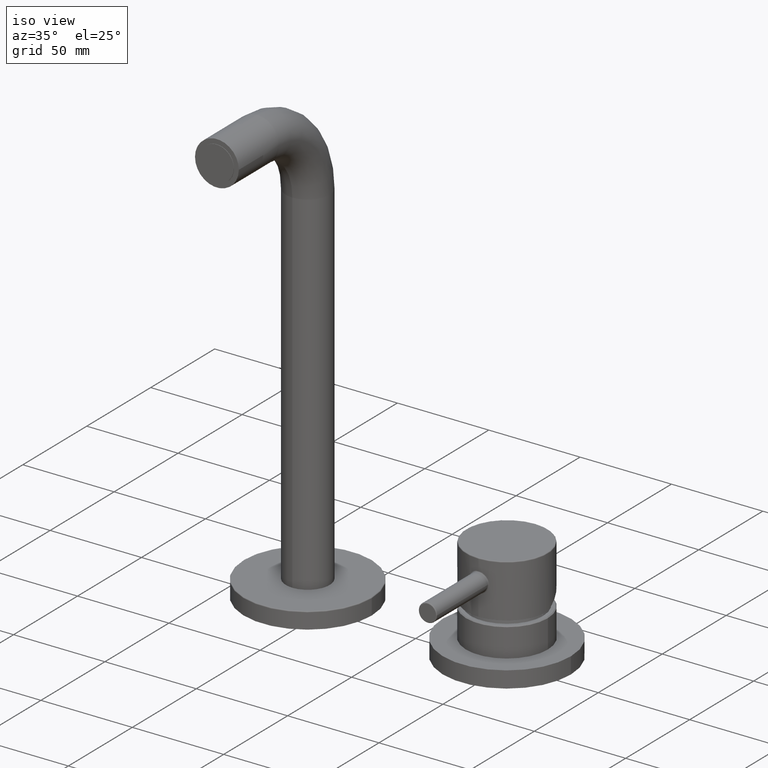
[diagram: clean part render]
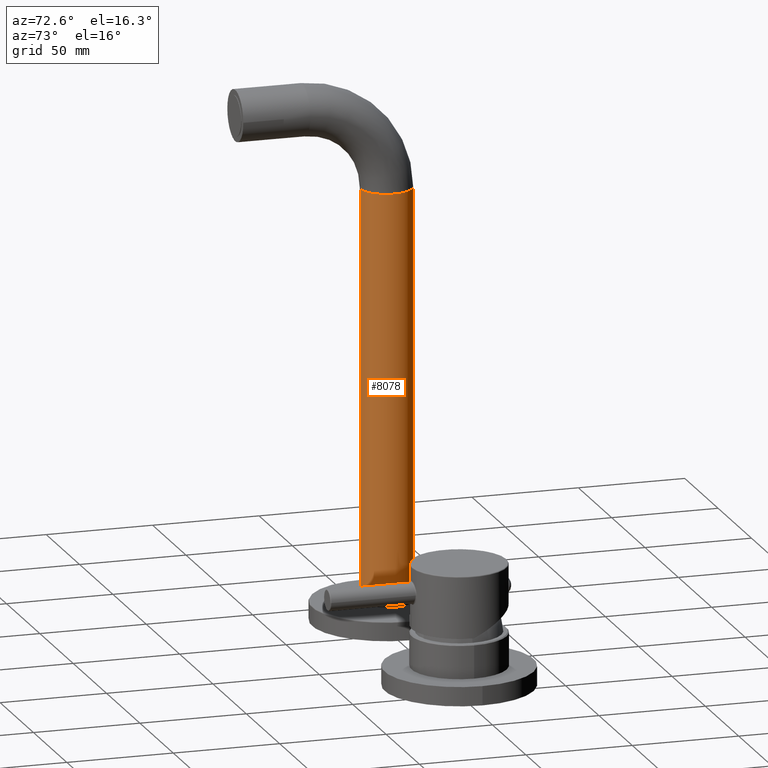
[diagram: tour spotlight — one face highlighted and labeled with its STEP entity id]
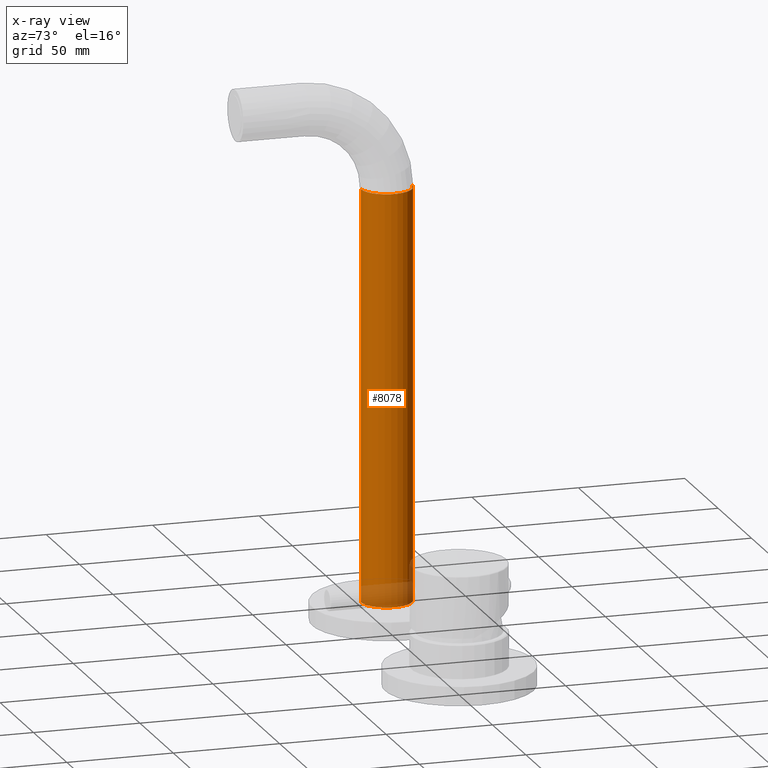
[diagram: x-ray of the same camera — body ghosted, this tour face saturated]
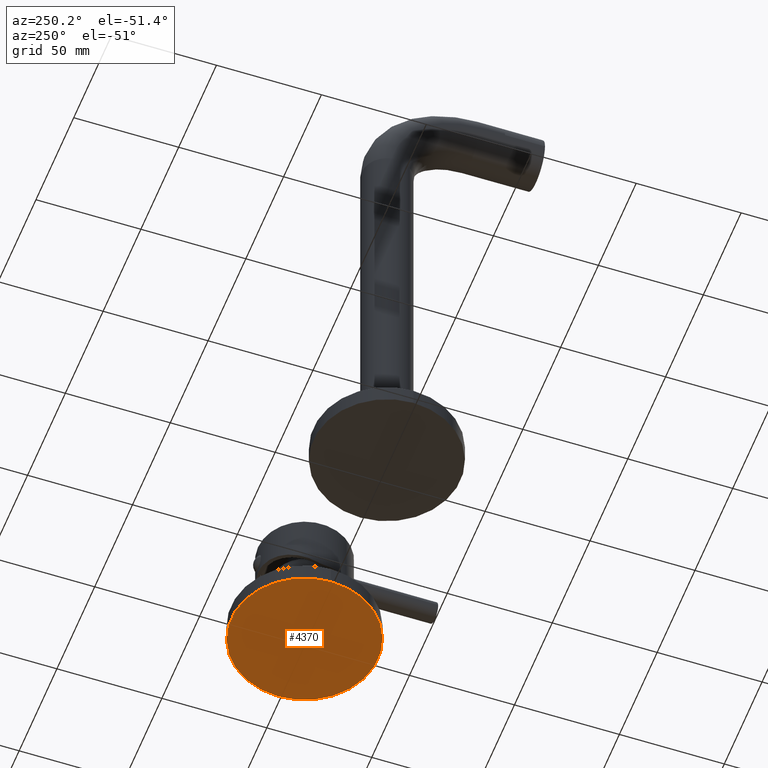
[diagram: tour spotlight — one face highlighted and labeled with its STEP entity id]
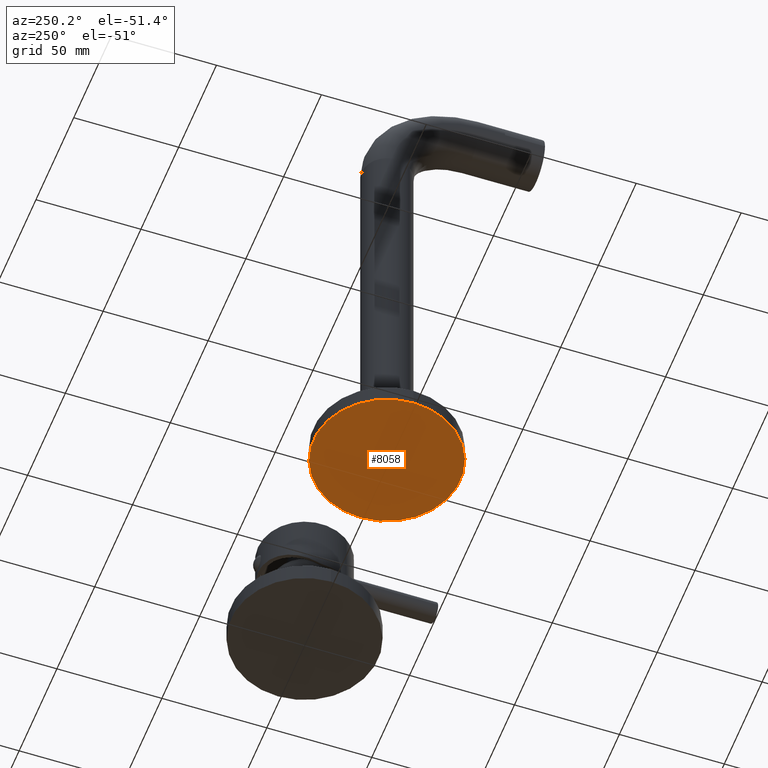
[diagram: tour spotlight — one face highlighted and labeled with its STEP entity id]
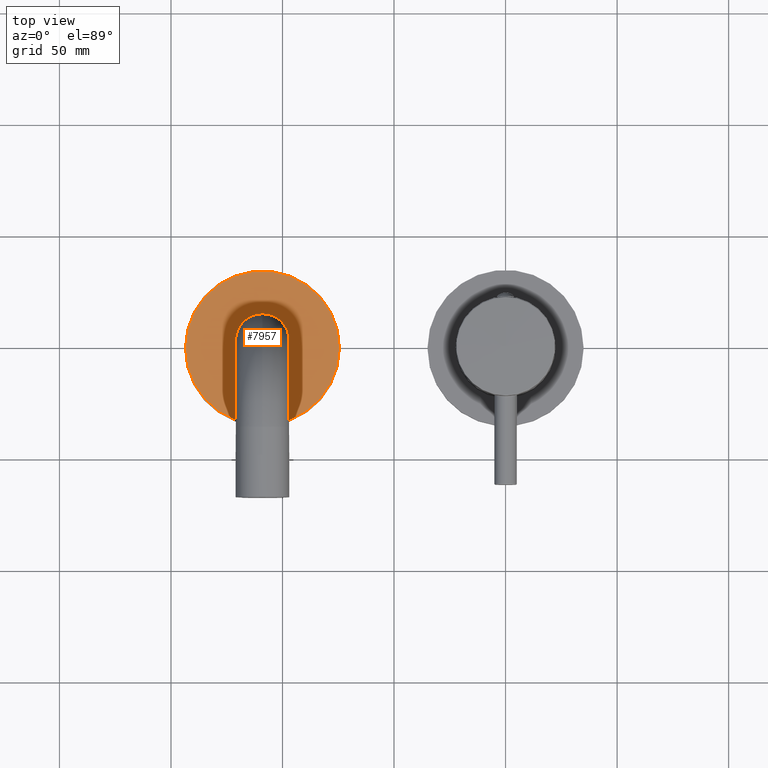
[diagram: tour spotlight — one face highlighted and labeled with its STEP entity id]
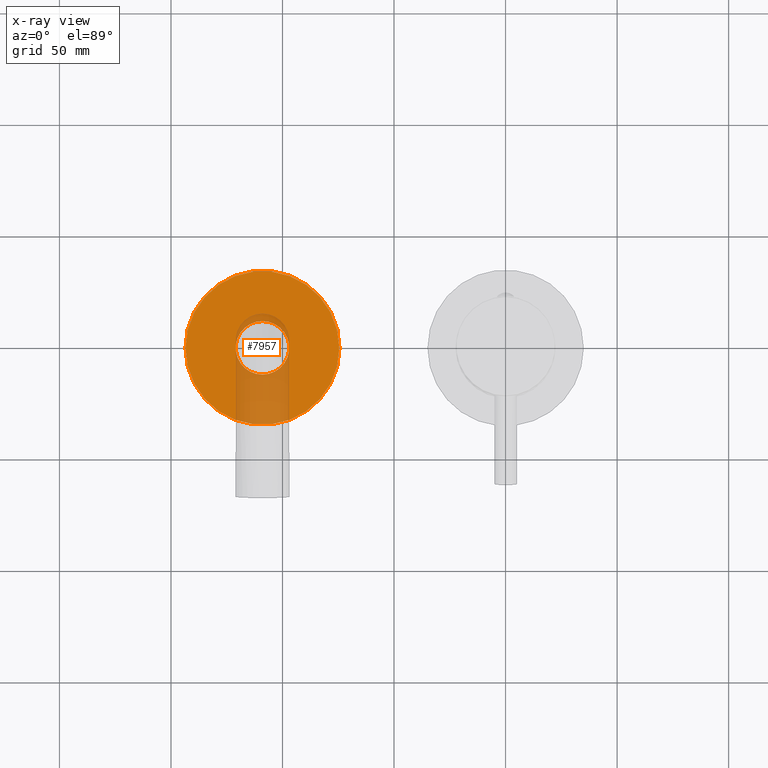
[diagram: x-ray of the same camera — body ghosted, this tour face saturated]
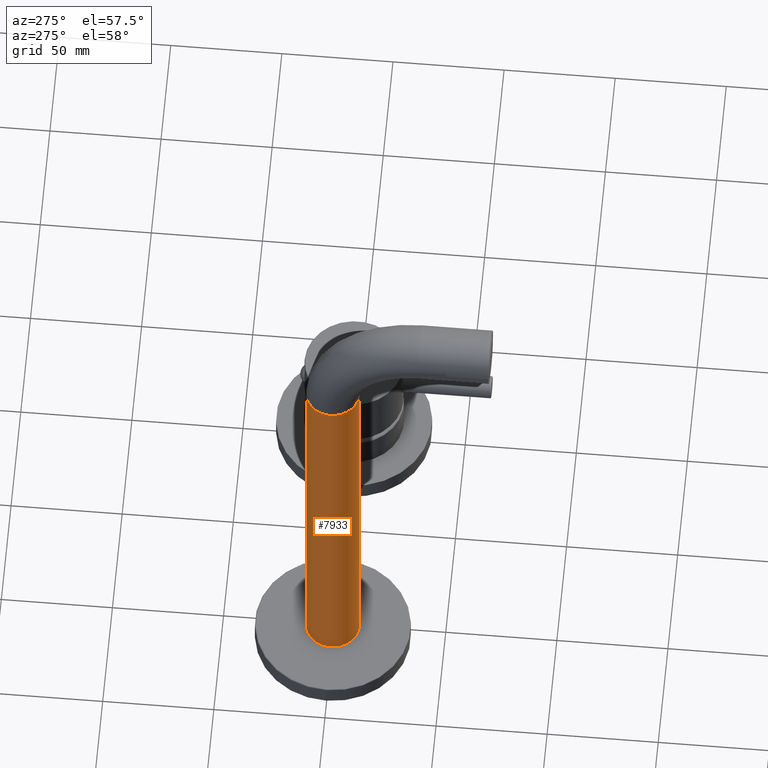
[diagram: tour spotlight — one face highlighted and labeled with its STEP entity id]
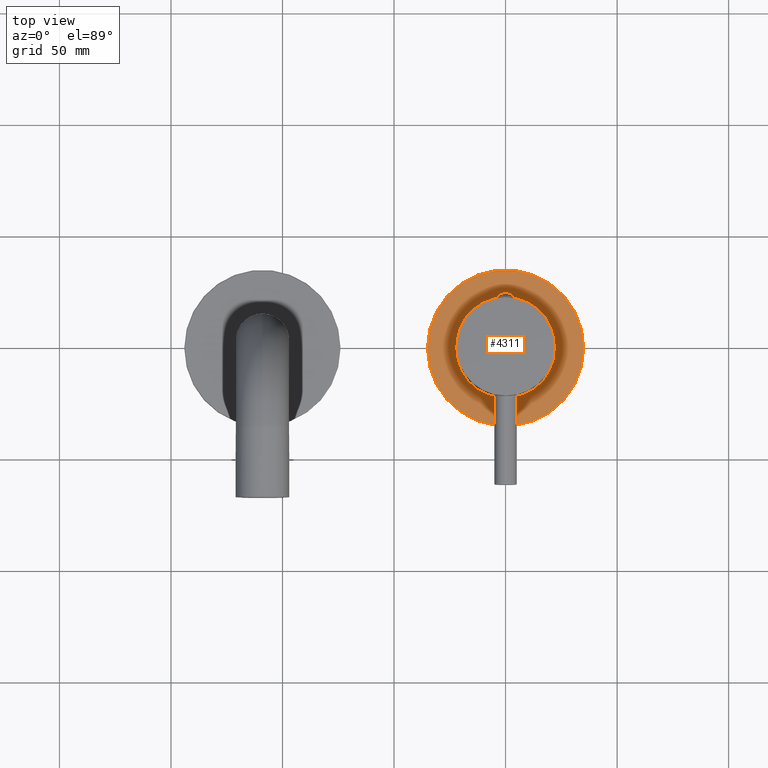
[diagram: tour spotlight — one face highlighted and labeled with its STEP entity id]
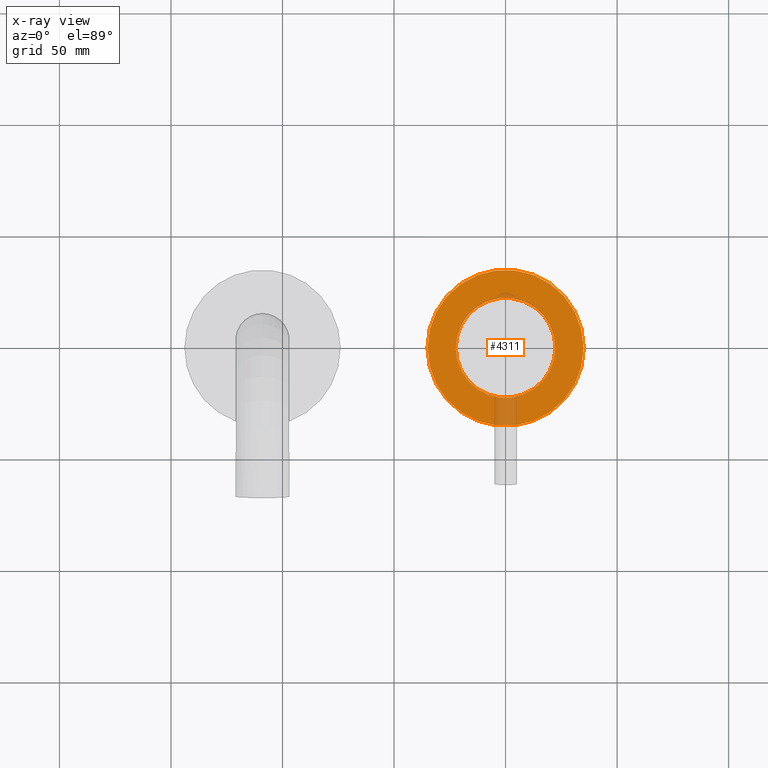
[diagram: x-ray of the same camera — body ghosted, this tour face saturated]
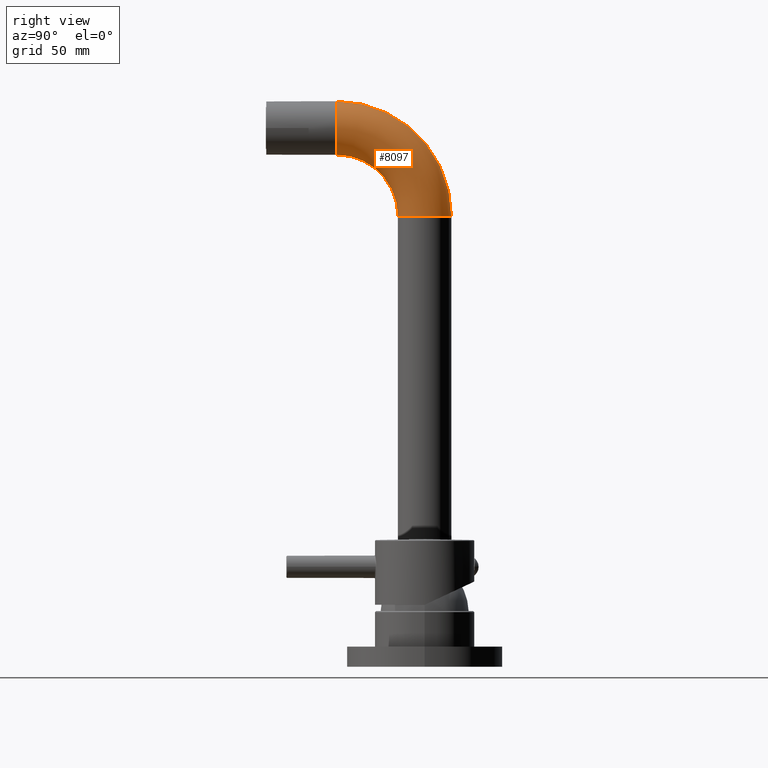
[diagram: tour spotlight — one face highlighted and labeled with its STEP entity id]
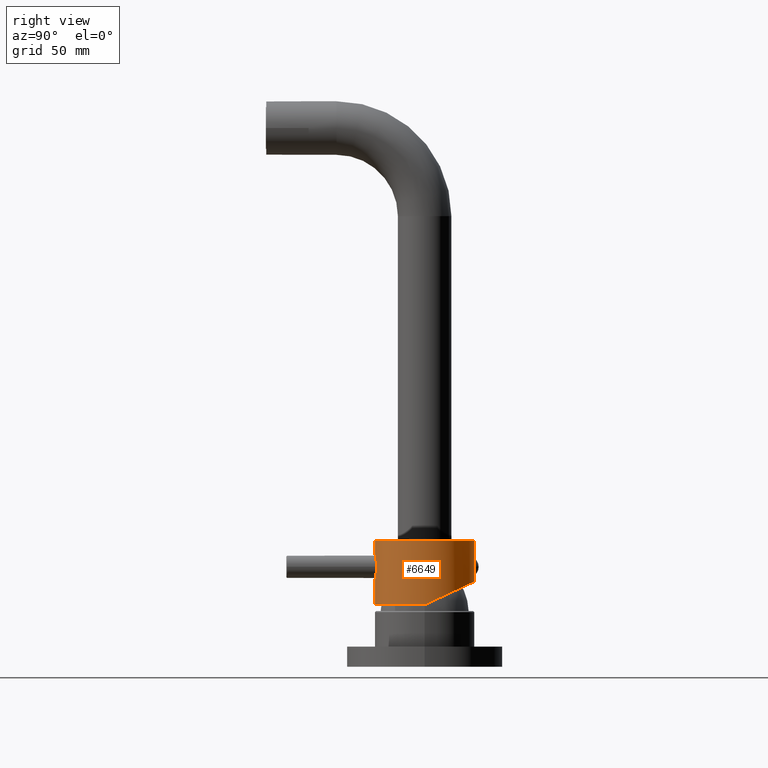
[diagram: tour spotlight — one face highlighted and labeled with its STEP entity id]
A machine part: a face-by-face anatomy tour. The part has 173 B-rep faces; the first image is the clean iso view, then the 8 largest visible faces are spotlighted one at a time (largest first), each with its STEP entity span.

Face 1 — auxiliary view, entity #8078. An x-ray twin of the same camera follows (body ghosted, this face saturated) — the face is partly hidden behind the body. In plain terms, the highlighted cylindrical surface (edge-blend (fillet) strip) has radius 12 mm, axis along (0, 0, 1).
Definition (entity closure, byte-faithful):
#7671=DIRECTION('',(0.E0,0.E0,1.E0));
#7672=VECTOR('',#7671,1.93E2);
#7673=CARTESIAN_POINT('',(-1.09E2,1.2E1,5.05E1));
#7674=LINE('',#7673,#7672);
#7723=CARTESIAN_POINT('',(-1.09E2,0.E0,5.05E1));
#7724=DIRECTION('',(0.E0,0.E0,1.E0));
#7725=DIRECTION('',(0.E0,-1.E0,0.E0));
#7726=AXIS2_PLACEMENT_3D('',#7723,#7724,#7725);
#7728=DIRECTION('',(0.E0,0.E0,1.E0));
#7729=VECTOR('',#7728,1.93E2);
#7730=CARTESIAN_POINT('',(-1.09E2,-1.2E1,5.05E1));
#7731=LINE('',#7730,#7729);
#7732=CARTESIAN_POINT('',(-1.09E2,2.842170943040E-14,2.435E2));
#7733=DIRECTION('',(0.E0,0.E0,1.E0));
#7734=DIRECTION('',(0.E0,-1.E0,0.E0));
#7735=AXIS2_PLACEMENT_3D('',#7732,#7733,#7734);
#7752=CARTESIAN_POINT('',(-1.09E2,-1.2E1,2.435E2));
#7753=CARTESIAN_POINT('',(-1.09E2,1.2E1,2.435E2));
#7754=VERTEX_POINT('',#7752);
#7755=VERTEX_POINT('',#7753);
#7792=CARTESIAN_POINT('',(-1.09E2,-1.2E1,5.05E1));
#7793=CARTESIAN_POINT('',(-1.09E2,1.2E1,5.05E1));
#7794=VERTEX_POINT('',#7792);
#7795=VERTEX_POINT('',#7793);
#8066=CARTESIAN_POINT('',(-1.09E2,0.E0,3.8E1));
#8067=DIRECTION('',(0.E0,0.E0,1.E0));
#8068=DIRECTION('',(0.E0,-1.E0,0.E0));
#8069=AXIS2_PLACEMENT_3D('',#8066,#8067,#8068);
#8070=CYLINDRICAL_SURFACE('',#8069,1.2E1);
#8071=ORIENTED_EDGE('',*,*,#7952,.F.);
#8072=ORIENTED_EDGE('',*,*,#7929,.T.);
#8074=ORIENTED_EDGE('',*,*,#8073,.T.);
#8075=ORIENTED_EDGE('',*,*,#7926,.F.);
#8076=EDGE_LOOP('',(#8071,#8072,#8074,#8075));
#8077=FACE_OUTER_BOUND('',#8076,.F.);
#8078=ADVANCED_FACE('',(#8077),#8070,.T.);
#7727=CIRCLE('',#7726,1.2E1);
#7736=CIRCLE('',#7735,1.2E1);
#7926=EDGE_CURVE('',#7795,#7755,#7674,.T.);
#7929=EDGE_CURVE('',#7794,#7754,#7731,.T.);
#7952=EDGE_CURVE('',#7794,#7795,#7727,.T.);
#8073=EDGE_CURVE('',#7754,#7755,#7736,.T.);

Face 2 — auxiliary view, entity #4370. In plain terms, the highlighted planar face has unit normal (0, 0, -1).
Definition (entity closure, byte-faithful):
#990=CARTESIAN_POINT('',(0.E0,0.E0,4.15E1));
#991=DIRECTION('',(0.E0,0.E0,1.E0));
#992=DIRECTION('',(-1.E0,0.E0,0.E0));
#993=AXIS2_PLACEMENT_3D('',#990,#991,#992);
#995=CARTESIAN_POINT('',(0.E0,0.E0,4.15E1));
#996=DIRECTION('',(0.E0,0.E0,-1.E0));
#997=DIRECTION('',(-1.E0,0.E0,0.E0));
#998=AXIS2_PLACEMENT_3D('',#995,#996,#997);
#3204=CARTESIAN_POINT('',(-3.5E1,0.E0,4.15E1));
#3206=VERTEX_POINT('',#3204);
#3208=CARTESIAN_POINT('',(3.5E1,0.E0,4.15E1));
#3210=VERTEX_POINT('',#3208);
#4361=CARTESIAN_POINT('',(-1.09E2,0.E0,4.15E1));
#4362=DIRECTION('',(0.E0,0.E0,-1.E0));
#4363=DIRECTION('',(-1.E0,0.E0,0.E0));
#4364=AXIS2_PLACEMENT_3D('',#4361,#4362,#4363);
#4365=PLANE('',#4364);
#4366=ORIENTED_EDGE('',*,*,#4347,.F.);
#4367=ORIENTED_EDGE('',*,*,#4329,.T.);
#4368=EDGE_LOOP('',(#4366,#4367));
#4369=FACE_OUTER_BOUND('',#4368,.F.);
#4370=ADVANCED_FACE('',(#4369),#4365,.T.);
#994=CIRCLE('',#993,3.5E1);
#999=CIRCLE('',#998,3.5E1);
#4329=EDGE_CURVE('',#3206,#3210,#994,.T.);
#4347=EDGE_CURVE('',#3206,#3210,#999,.T.);

Face 3 — auxiliary view, entity #8058. In plain terms, the highlighted planar face has unit normal (0, 0, -1).
Definition (entity closure, byte-faithful):
#7700=CARTESIAN_POINT('',(-1.09E2,0.E0,4.15E1));
#7701=DIRECTION('',(0.E0,0.E0,-1.E0));
#7702=DIRECTION('',(-1.E0,0.E0,0.E0));
#7703=AXIS2_PLACEMENT_3D('',#7700,#7701,#7702);
#7714=CARTESIAN_POINT('',(-1.09E2,0.E0,4.15E1));
#7715=DIRECTION('',(0.E0,0.E0,1.E0));
#7716=DIRECTION('',(-1.E0,0.E0,0.E0));
#7717=AXIS2_PLACEMENT_3D('',#7714,#7715,#7716);
#7776=CARTESIAN_POINT('',(-1.44E2,0.E0,4.15E1));
#7777=CARTESIAN_POINT('',(-7.4E1,0.E0,4.15E1));
#7778=VERTEX_POINT('',#7776);
#7779=VERTEX_POINT('',#7777);
#8049=CARTESIAN_POINT('',(-1.09E2,0.E0,4.15E1));
#8050=DIRECTION('',(0.E0,0.E0,-1.E0));
#8051=DIRECTION('',(-1.E0,0.E0,0.E0));
#8052=AXIS2_PLACEMENT_3D('',#8049,#8050,#8051);
#8053=PLANE('',#8052);
#8054=ORIENTED_EDGE('',*,*,#8015,.F.);
#8055=ORIENTED_EDGE('',*,*,#8036,.T.);
#8056=EDGE_LOOP('',(#8054,#8055));
#8057=FACE_OUTER_BOUND('',#8056,.F.);
#8058=ADVANCED_FACE('',(#8057),#8053,.T.);
#7704=CIRCLE('',#7703,3.5E1);
#7718=CIRCLE('',#7717,3.5E1);
#8015=EDGE_CURVE('',#7778,#7779,#7704,.T.);
#8036=EDGE_CURVE('',#7778,#7779,#7718,.T.);

Face 4 — top view, entity #7957. An x-ray twin of the same camera follows (body ghosted, this face saturated) — the face is partly hidden behind the body. In plain terms, the highlighted planar face has unit normal (0, 0, -1).
Definition (entity closure, byte-faithful):
#7666=CARTESIAN_POINT('',(-1.09E2,0.E0,5.05E1));
#7667=DIRECTION('',(0.E0,0.E0,1.E0));
#7668=DIRECTION('',(0.E0,1.E0,0.E0));
#7669=AXIS2_PLACEMENT_3D('',#7666,#7667,#7668);
#7675=CARTESIAN_POINT('',(-1.09E2,0.E0,5.05E1));
#7676=DIRECTION('',(0.E0,0.E0,1.E0));
#7677=DIRECTION('',(-1.E0,0.E0,0.E0));
#7678=AXIS2_PLACEMENT_3D('',#7675,#7676,#7677);
#7680=CARTESIAN_POINT('',(-1.09E2,0.E0,5.05E1));
#7681=DIRECTION('',(0.E0,0.E0,1.E0));
#7682=DIRECTION('',(1.E0,0.E0,0.E0));
#7683=AXIS2_PLACEMENT_3D('',#7680,#7681,#7682);
#7723=CARTESIAN_POINT('',(-1.09E2,0.E0,5.05E1));
#7724=DIRECTION('',(0.E0,0.E0,1.E0));
#7725=DIRECTION('',(0.E0,-1.E0,0.E0));
#7726=AXIS2_PLACEMENT_3D('',#7723,#7724,#7725);
#7780=CARTESIAN_POINT('',(-1.435E2,1.997474557659E-14,5.05E1));
#7781=CARTESIAN_POINT('',(-7.45E1,-2.334250427424E-14,5.05E1));
#7782=VERTEX_POINT('',#7780);
#7783=VERTEX_POINT('',#7781);
#7792=CARTESIAN_POINT('',(-1.09E2,-1.2E1,5.05E1));
#7793=CARTESIAN_POINT('',(-1.09E2,1.2E1,5.05E1));
#7794=VERTEX_POINT('',#7792);
#7795=VERTEX_POINT('',#7793);
#7941=CARTESIAN_POINT('',(-1.09E2,0.E0,5.05E1));
#7942=DIRECTION('',(0.E0,0.E0,-1.E0));
#7943=DIRECTION('',(1.E0,0.E0,0.E0));
#7944=AXIS2_PLACEMENT_3D('',#7941,#7942,#7943);
#7945=PLANE('',#7944);
#7947=ORIENTED_EDGE('',*,*,#7946,.F.);
#7949=ORIENTED_EDGE('',*,*,#7948,.F.);
#7950=EDGE_LOOP('',(#7947,#7949));
#7951=FACE_OUTER_BOUND('',#7950,.F.);
#7953=ORIENTED_EDGE('',*,*,#7952,.T.);
#7954=ORIENTED_EDGE('',*,*,#7924,.T.);
#7955=EDGE_LOOP('',(#7953,#7954));
#7956=FACE_BOUND('',#7955,.F.);
#7957=ADVANCED_FACE('',(#7951,#7956),#7945,.F.);
#7670=CIRCLE('',#7669,1.2E1);
#7679=CIRCLE('',#7678,3.45E1);
#7684=CIRCLE('',#7683,3.45E1);
#7727=CIRCLE('',#7726,1.2E1);
#7924=EDGE_CURVE('',#7795,#7794,#7670,.T.);
#7946=EDGE_CURVE('',#7782,#7783,#7679,.T.);
#7948=EDGE_CURVE('',#7783,#7782,#7684,.T.);
#7952=EDGE_CURVE('',#7794,#7795,#7727,.T.);

Face 5 — auxiliary view, entity #7933. In plain terms, the highlighted cylindrical surface (edge-blend (fillet) strip) has radius 12 mm, axis along (0, 0, 1).
Definition (entity closure, byte-faithful):
#7656=CARTESIAN_POINT('',(-1.09E2,2.842170943040E-14,2.435E2));
#7657=DIRECTION('',(0.E0,0.E0,1.E0));
#7658=DIRECTION('',(0.E0,1.E0,0.E0));
#7659=AXIS2_PLACEMENT_3D('',#7656,#7657,#7658);
#7666=CARTESIAN_POINT('',(-1.09E2,0.E0,5.05E1));
#7667=DIRECTION('',(0.E0,0.E0,1.E0));
#7668=DIRECTION('',(0.E0,1.E0,0.E0));
#7669=AXIS2_PLACEMENT_3D('',#7666,#7667,#7668);
#7671=DIRECTION('',(0.E0,0.E0,1.E0));
#7672=VECTOR('',#7671,1.93E2);
#7673=CARTESIAN_POINT('',(-1.09E2,1.2E1,5.05E1));
#7674=LINE('',#7673,#7672);
#7728=DIRECTION('',(0.E0,0.E0,1.E0));
#7729=VECTOR('',#7728,1.93E2);
#7730=CARTESIAN_POINT('',(-1.09E2,-1.2E1,5.05E1));
#7731=LINE('',#7730,#7729);
#7752=CARTESIAN_POINT('',(-1.09E2,-1.2E1,2.435E2));
#7753=CARTESIAN_POINT('',(-1.09E2,1.2E1,2.435E2));
#7754=VERTEX_POINT('',#7752);
#7755=VERTEX_POINT('',#7753);
#7792=CARTESIAN_POINT('',(-1.09E2,-1.2E1,5.05E1));
#7793=CARTESIAN_POINT('',(-1.09E2,1.2E1,5.05E1));
#7794=VERTEX_POINT('',#7792);
#7795=VERTEX_POINT('',#7793);
#7919=CARTESIAN_POINT('',(-1.09E2,0.E0,3.8E1));
#7920=DIRECTION('',(0.E0,0.E0,1.E0));
#7921=DIRECTION('',(0.E0,-1.E0,0.E0));
#7922=AXIS2_PLACEMENT_3D('',#7919,#7920,#7921);
#7923=CYLINDRICAL_SURFACE('',#7922,1.2E1);
#7925=ORIENTED_EDGE('',*,*,#7924,.F.);
#7927=ORIENTED_EDGE('',*,*,#7926,.T.);
#7928=ORIENTED_EDGE('',*,*,#7902,.T.);
#7930=ORIENTED_EDGE('',*,*,#7929,.F.);
#7931=EDGE_LOOP('',(#7925,#7927,#7928,#7930));
#7932=FACE_OUTER_BOUND('',#7931,.F.);
#7933=ADVANCED_FACE('',(#7932),#7923,.T.);
#7660=CIRCLE('',#7659,1.2E1);
#7670=CIRCLE('',#7669,1.2E1);
#7902=EDGE_CURVE('',#7755,#7754,#7660,.T.);
#7924=EDGE_CURVE('',#7795,#7794,#7670,.T.);
#7926=EDGE_CURVE('',#7795,#7755,#7674,.T.);
#7929=EDGE_CURVE('',#7794,#7754,#7731,.T.);

Face 6 — top view, entity #4311. An x-ray twin of the same camera follows (body ghosted, this face saturated) — the face is partly hidden behind the body. In plain terms, the highlighted planar face has unit normal (0, 0, -1).
Definition (entity closure, byte-faithful):
#954=CARTESIAN_POINT('',(0.E0,0.E0,5.05E1));
#955=DIRECTION('',(0.E0,0.E0,1.E0));
#956=DIRECTION('',(1.E0,0.E0,0.E0));
#957=AXIS2_PLACEMENT_3D('',#954,#955,#956);
#972=CARTESIAN_POINT('',(0.E0,0.E0,5.05E1));
#973=DIRECTION('',(0.E0,0.E0,1.E0));
#974=DIRECTION('',(-1.E0,0.E0,0.E0));
#975=AXIS2_PLACEMENT_3D('',#972,#973,#974);
#977=CARTESIAN_POINT('',(0.E0,0.E0,5.05E1));
#978=DIRECTION('',(0.E0,0.E0,-1.E0));
#979=DIRECTION('',(-1.E0,0.E0,0.E0));
#980=AXIS2_PLACEMENT_3D('',#977,#978,#979);
#1000=CARTESIAN_POINT('',(0.E0,0.E0,5.05E1));
#1001=DIRECTION('',(0.E0,0.E0,1.E0));
#1002=DIRECTION('',(-1.E0,0.E0,0.E0));
#1003=AXIS2_PLACEMENT_3D('',#1000,#1001,#1002);
#3205=CARTESIAN_POINT('',(-3.5E1,0.E0,5.05E1));
#3207=VERTEX_POINT('',#3205);
#3209=CARTESIAN_POINT('',(3.5E1,0.E0,5.05E1));
#3211=VERTEX_POINT('',#3209);
#3232=CARTESIAN_POINT('',(-2.24E1,0.E0,5.05E1));
#3233=CARTESIAN_POINT('',(2.24E1,0.E0,5.05E1));
#3234=VERTEX_POINT('',#3232);
#3235=VERTEX_POINT('',#3233);
#4295=CARTESIAN_POINT('',(0.E0,0.E0,5.05E1));
#4296=DIRECTION('',(0.E0,0.E0,-1.E0));
#4297=DIRECTION('',(1.E0,0.E0,0.E0));
#4298=AXIS2_PLACEMENT_3D('',#4295,#4296,#4297);
#4299=PLANE('',#4298);
#4301=ORIENTED_EDGE('',*,*,#4300,.F.);
#4303=ORIENTED_EDGE('',*,*,#4302,.T.);
#4304=EDGE_LOOP('',(#4301,#4303));
#4305=FACE_OUTER_BOUND('',#4304,.F.);
#4307=ORIENTED_EDGE('',*,*,#4306,.T.);
#4308=ORIENTED_EDGE('',*,*,#4278,.T.);
#4309=EDGE_LOOP('',(#4307,#4308));
#4310=FACE_BOUND('',#4309,.F.);
#4311=ADVANCED_FACE('',(#4305,#4310),#4299,.F.);
#958=CIRCLE('',#957,2.24E1);
#976=CIRCLE('',#975,3.5E1);
#981=CIRCLE('',#980,3.5E1);
#1004=CIRCLE('',#1003,2.24E1);
#4278=EDGE_CURVE('',#3235,#3234,#958,.T.);
#4300=EDGE_CURVE('',#3207,#3211,#976,.T.);
#4302=EDGE_CURVE('',#3207,#3211,#981,.T.);
#4306=EDGE_CURVE('',#3234,#3235,#1004,.T.);

Face 7 — right view, entity #8097. In plain terms, the highlighted toroidal blend (fillet) surface has major radius 39.5 mm and minor (blend) radius 12 mm.
Definition (entity closure, byte-faithful):
#7620=CARTESIAN_POINT('',(-1.09E2,-3.95E1,2.83E2));
#7621=DIRECTION('',(0.E0,-1.E0,0.E0));
#7622=DIRECTION('',(0.E0,0.E0,-1.E0));
#7623=AXIS2_PLACEMENT_3D('',#7620,#7621,#7622);
#7661=CARTESIAN_POINT('',(-1.09E2,-3.95E1,2.435E2));
#7662=DIRECTION('',(1.E0,0.E0,0.E0));
#7663=DIRECTION('',(0.E0,1.E0,0.E0));
#7664=AXIS2_PLACEMENT_3D('',#7661,#7662,#7663);
#7732=CARTESIAN_POINT('',(-1.09E2,2.842170943040E-14,2.435E2));
#7733=DIRECTION('',(0.E0,0.E0,1.E0));
#7734=DIRECTION('',(0.E0,-1.E0,0.E0));
#7735=AXIS2_PLACEMENT_3D('',#7732,#7733,#7734);
#7737=CARTESIAN_POINT('',(-1.09E2,-3.95E1,2.435E2));
#7738=DIRECTION('',(1.E0,0.E0,0.E0));
#7739=DIRECTION('',(0.E0,1.E0,0.E0));
#7740=AXIS2_PLACEMENT_3D('',#7737,#7738,#7739);
#7752=CARTESIAN_POINT('',(-1.09E2,-1.2E1,2.435E2));
#7753=CARTESIAN_POINT('',(-1.09E2,1.2E1,2.435E2));
#7754=VERTEX_POINT('',#7752);
#7755=VERTEX_POINT('',#7753);
#7756=CARTESIAN_POINT('',(-1.09E2,-3.95E1,2.71E2));
#7757=CARTESIAN_POINT('',(-1.09E2,-3.95E1,2.95E2));
#7758=VERTEX_POINT('',#7756);
#7759=VERTEX_POINT('',#7757);
#8086=CARTESIAN_POINT('',(-1.09E2,-3.95E1,2.435E2));
#8087=DIRECTION('',(1.E0,0.E0,0.E0));
#8088=DIRECTION('',(0.E0,-1.E0,0.E0));
#8089=AXIS2_PLACEMENT_3D('',#8086,#8087,#8088);
#8090=TOROIDAL_SURFACE('',#8089,3.95E1,1.2E1);
#8091=ORIENTED_EDGE('',*,*,#8073,.F.);
#8092=ORIENTED_EDGE('',*,*,#7907,.T.);
#8093=ORIENTED_EDGE('',*,*,#7859,.T.);
#8094=ORIENTED_EDGE('',*,*,#7904,.F.);
#8095=EDGE_LOOP('',(#8091,#8092,#8093,#8094));
#8096=FACE_OUTER_BOUND('',#8095,.F.);
#8097=ADVANCED_FACE('',(#8096),#8090,.T.);
#7624=CIRCLE('',#7623,1.2E1);
#7665=CIRCLE('',#7664,5.15E1);
#7736=CIRCLE('',#7735,1.2E1);
#7741=CIRCLE('',#7740,2.75E1);
#7859=EDGE_CURVE('',#7758,#7759,#7624,.T.);
#7904=EDGE_CURVE('',#7755,#7759,#7665,.T.);
#7907=EDGE_CURVE('',#7754,#7758,#7741,.T.);
#8073=EDGE_CURVE('',#7754,#7755,#7736,.T.);

Face 8 — right view, entity #6649. In plain terms, the highlighted cylindrical surface (partial cylindrical patch) has radius 22.25 mm, axis along (0, 0, -1).
Definition (entity closure, byte-faithful):
#2002=CARTESIAN_POINT('',(-1.785880399437E-12,2.225E1,9.01E1));
#2059=CARTESIAN_POINT('',(-9.808359085489E-11,-2.224999752479E1,
8.079999999991E1));
#2082=CARTESIAN_POINT('',(-5.726766385550E-7,2.225E1,7.967534539395E1));
#2084=CARTESIAN_POINT('',(-1.707135518080E-12,2.225E1,8.25E1));
#2296=DIRECTION('',(0.E0,0.E0,-1.E0));
#2297=VECTOR('',#2296,1.184510057661E0);
#2298=CARTESIAN_POINT('',(1.490805151586E0,2.22E1,8.979535405932E1));
#2299=LINE('',#2298,#2297);
#2300=CARTESIAN_POINT('',(2.561737691488E0,2.210203610530E1,8.73E1));
#2301=CARTESIAN_POINT('',(2.535645803336E0,2.210506028701E1,8.736684057332E1));
#2302=CARTESIAN_POINT('',(2.478425307967E0,2.211159975857E1,8.749802321485E1));
#2303=CARTESIAN_POINT('',(2.377425377226E0,2.212271003463E1,8.768771672510E1));
#2304=CARTESIAN_POINT('',(2.261741988808E0,2.213486171409E1,8.786923701894E1));
#2305=CARTESIAN_POINT('',(2.131975519547E0,2.214776315849E1,8.804144297803E1));
#2306=CARTESIAN_POINT('',(1.989522645056E0,2.216104098673E1,8.820256253672E1));
#2307=CARTESIAN_POINT('',(1.834472544539E0,2.217444224459E1,8.835248935872E1));
#2308=CARTESIAN_POINT('',(1.668402603119E0,2.218758060269E1,8.848959542006E1));
#2309=CARTESIAN_POINT('',(1.551144148316E0,2.219594803211E1,8.857191723416E1));
#2310=CARTESIAN_POINT('',(1.490805151586E0,2.22E1,8.861084400166E1));
#2312=CARTESIAN_POINT('',(2.561737691488E0,2.210203610530E1,8.73E1));
#2313=CARTESIAN_POINT('',(2.589375747144E0,2.209883271496E1,8.722919855111E1));
#2314=CARTESIAN_POINT('',(2.638599692759E0,2.209302383114E1,8.708587011121E1));
#2315=CARTESIAN_POINT('',(2.694649589295E0,2.208624199715E1,8.686451500762E1));
#2316=CARTESIAN_POINT('',(2.731991256439E0,2.208164327162E1,8.664039914879E1));
#2317=CARTESIAN_POINT('',(2.750778611126E0,2.207930541515E1,8.641398502745E1));
#2318=CARTESIAN_POINT('',(2.750778578405E0,2.207930541870E1,8.618602393475E1));
#2319=CARTESIAN_POINT('',(2.731994179591E0,2.208164290942E1,8.595962429536E1));
#2320=CARTESIAN_POINT('',(2.694651820399E0,2.208624172575E1,8.573549374288E1));
#2321=CARTESIAN_POINT('',(2.638600872230E0,2.209302369145E1,8.551413360506E1));
#2322=CARTESIAN_POINT('',(2.589376082776E0,2.209883267606E1,8.537080230869E1));
#2323=CARTESIAN_POINT('',(2.561737691488E0,2.210203610530E1,8.53E1));
#2325=CARTESIAN_POINT('',(1.490805151586E0,2.22E1,8.398915599834E1));
#2326=CARTESIAN_POINT('',(1.551139184959E0,2.219594836542E1,8.402807956380E1));
#2327=CARTESIAN_POINT('',(1.668392534549E0,2.218758148913E1,8.411039479988E1));
#2328=CARTESIAN_POINT('',(1.834528108077E0,2.217443767462E1,8.424755948811E1));
#2329=CARTESIAN_POINT('',(1.989519615945E0,2.216104109394E1,8.439743880639E1));
#2330=CARTESIAN_POINT('',(2.131970337740E0,2.214776386796E1,8.455854281409E1));
#2331=CARTESIAN_POINT('',(2.261822964632E0,2.213485326642E1,8.473088852611E1));
#2332=CARTESIAN_POINT('',(2.377316593025E0,2.212272168665E1,8.491209787778E1));
#2333=CARTESIAN_POINT('',(2.478496212628E0,2.211159200654E1,8.510210759825E1));
#2334=CARTESIAN_POINT('',(2.535667302876E0,2.210505779510E1,8.523321450286E1));
#2335=CARTESIAN_POINT('',(2.561737691488E0,2.210203610530E1,8.53E1));
#2337=DIRECTION('',(0.E0,0.E0,-1.E0));
#2338=VECTOR('',#2337,1.184510057661E0);
#2339=CARTESIAN_POINT('',(1.490805151586E0,2.22E1,8.398915599834E1));
#2340=LINE('',#2339,#2338);
#2341=CARTESIAN_POINT('',(1.490805151586E0,2.22E1,8.280464594068E1));
#2342=CARTESIAN_POINT('',(1.412114772744E0,2.220528432532E1,8.277108366911E1));
#2343=CARTESIAN_POINT('',(1.252982475079E0,2.221513054325E1,8.270948271856E1));
#2344=CARTESIAN_POINT('',(1.008839312187E0,2.222757482434E1,8.263338556802E1));
#2345=CARTESIAN_POINT('',(7.601100729948E-1,2.223748200167E1,8.257388480223E1));
#2346=CARTESIAN_POINT('',(5.087853765853E-1,2.224466190792E1,8.253133387203E1));
#2347=CARTESIAN_POINT('',(2.545621723721E-1,2.224902925119E1,8.250567767227E1));
#2348=CARTESIAN_POINT('',(8.496886915603E-2,2.225E1,8.25E1));
#2349=CARTESIAN_POINT('',(-1.707135518080E-12,2.225E1,8.25E1));
#2351=DIRECTION('',(6.758052257567E-8,-1.266257713725E-9,1.E0));
#2352=VECTOR('',#2351,2.824654604383E0);
#2353=CARTESIAN_POINT('',(-1.908933413955E-7,2.225000000358E1,
7.967534539562E1));
#2354=LINE('',#2353,#2352);
#2355=CARTESIAN_POINT('',(-5.726766365024E-7,2.225E1,7.967534539395E1));
#2356=CARTESIAN_POINT('',(9.750027586039E-1,2.225000002509E1,7.967534540565E1));
#2357=CARTESIAN_POINT('',(2.786736590362E0,2.212468232843E1,7.961690880400E1));
#2358=CARTESIAN_POINT('',(5.214139355578E0,2.167369708472E1,7.940661093114E1));
#2359=CARTESIAN_POINT('',(7.415069590522E0,2.101745801744E1,7.910060162849E1));
#2360=CARTESIAN_POINT('',(9.428259258512E0,2.019106820756E1,7.871524973152E1));
#2361=CARTESIAN_POINT('',(1.127805652676E1,1.921659458925E1,7.826084522063E1));
#2362=CARTESIAN_POINT('',(1.298036752389E1,1.810845301114E1,7.774411031643E1));
#2363=CARTESIAN_POINT('',(1.454545188314E1,1.687594185900E1,7.716938092743E1));
#2364=CARTESIAN_POINT('',(1.645717133186E1,1.507393568511E1,7.632909164850E1));
#2365=CARTESIAN_POINT('',(1.852668552800E1,1.253128701209E1,7.514343510027E1));
#2366=CARTESIAN_POINT('',(2.015928885434E1,9.592662604278E0,7.377313203447E1));
#2367=CARTESIAN_POINT('',(2.116623583378E1,6.970654072685E0,7.255046937644E1));
#2368=CARTESIAN_POINT('',(2.175351244038E1,4.851948114927E0,7.156250056296E1));
#2369=CARTESIAN_POINT('',(2.214621202673E1,2.556895483537E0,7.049229994507E1));
#2370=CARTESIAN_POINT('',(2.225E1,8.836531115282E-1,6.971205421306E1));
#2371=CARTESIAN_POINT('',(2.225E1,1.902478174998E-12,6.93E1));
#2373=CARTESIAN_POINT('',(1.905456181785E-13,1.500523132070E-14,6.93E1));
#2374=DIRECTION('',(0.E0,0.E0,1.E0));
#2375=DIRECTION('',(8.476552793013E-14,-1.E0,0.E0));
#2376=AXIS2_PLACEMENT_3D('',#2373,#2374,#2375);
#2378=DIRECTION('',(-8.709421992249E-12,2.152360324383E-7,1.E0));
#2379=VECTOR('',#2378,1.149999999991E1);
#2380=CARTESIAN_POINT('',(2.074762055205E-12,-2.225E1,6.93E1));
#2381=LINE('',#2380,#2379);
#2382=CARTESIAN_POINT('',(-9.808359085489E-11,-2.224999752479E1,
8.079999999991E1));
#2383=CARTESIAN_POINT('',(1.229865098461E-1,-2.224999472100E1,
8.080001941409E1));
#2384=CARTESIAN_POINT('',(3.693175379252E-1,-2.224796704649E1,
8.080868959829E1));
#2385=CARTESIAN_POINT('',(7.408048916338E-1,-2.223869852801E1,
8.084793564134E1));
#2386=CARTESIAN_POINT('',(1.111119922227E0,-2.222326296058E1,8.091400032020E1));
#2387=CARTESIAN_POINT('',(1.478165517653E0,-2.220184791904E1,8.100702637406E1));
#2388=CARTESIAN_POINT('',(1.839695032193E0,-2.217478359694E1,8.112677137983E1));
#2389=CARTESIAN_POINT('',(2.193401922578E0,-2.214254978892E1,8.127296738481E1));
#2390=CARTESIAN_POINT('',(2.537381817576E0,-2.210572103221E1,8.144511448355E1));
#2391=CARTESIAN_POINT('',(2.870024519035E0,-2.206493982581E1,8.164269613158E1));
#2392=CARTESIAN_POINT('',(3.189592504404E0,-2.202094895201E1,8.186532028103E1));
#2393=CARTESIAN_POINT('',(3.494027032414E0,-2.197462715009E1,8.211198985327E1));
#2394=CARTESIAN_POINT('',(3.781238459356E0,-2.192695211666E1,8.238137947836E1));
#2395=CARTESIAN_POINT('',(4.049213254878E0,-2.187896820339E1,8.267208769227E1));
#2396=CARTESIAN_POINT('',(4.296105281666E0,-2.183174751864E1,8.298220481124E1));
#2397=CARTESIAN_POINT('',(4.520215144815E0,-2.178636682002E1,8.330963111240E1));
#2398=CARTESIAN_POINT('',(4.720131871464E0,-2.174385195978E1,8.365230764646E1));
#2399=CARTESIAN_POINT('',(4.895060909153E0,-2.170506979584E1,8.400830617649E1));
#2400=CARTESIAN_POINT('',(5.044172218430E0,-2.167083927083E1,8.437575357520E1));
#2401=CARTESIAN_POINT('',(5.166631540499E0,-2.164191686775E1,8.475248731086E1));
#2402=CARTESIAN_POINT('',(5.261984699963E0,-2.161888774460E1,8.513591210454E1));
#2403=CARTESIAN_POINT('',(5.329852747409E0,-2.160222754380E1,8.552345198259E1));
#2404=CARTESIAN_POINT('',(5.370155443118E0,-2.159221743360E1,8.591277127901E1));
#2405=CARTESIAN_POINT('',(5.379100232100E0,-2.159000692679E1,8.617100381954E1));
#2406=CARTESIAN_POINT('',(5.379122787403E0,-2.158999512235E1,8.629999999973E1));
#2408=CARTESIAN_POINT('',(5.379122787403E0,-2.158999512235E1,8.629999999973E1));
#2409=CARTESIAN_POINT('',(5.379101455363E0,-2.159000597588E1,8.642897301216E1));
#2410=CARTESIAN_POINT('',(5.370167026011E0,-2.159221486242E1,8.668714787309E1));
#2411=CARTESIAN_POINT('',(5.329858140424E0,-2.160222609950E1,8.707632833344E1));
#2412=CARTESIAN_POINT('',(5.262066071334E0,-2.161886786197E1,8.746373192037E1));
#2413=CARTESIAN_POINT('',(5.166774633747E0,-2.164188258417E1,8.784699980897E1));
#2414=CARTESIAN_POINT('',(5.044398578355E0,-2.167078636826E1,8.822360543482E1));
#2415=CARTESIAN_POINT('',(4.895382194324E0,-2.170499713274E1,8.859099473306E1));
#2416=CARTESIAN_POINT('',(4.720510591037E0,-2.174376959586E1,8.894698028353E1));
#2417=CARTESIAN_POINT('',(4.520653354462E0,-2.178627564931E1,8.928966738849E1));
#2418=CARTESIAN_POINT('',(4.296628391493E0,-2.183164425263E1,8.961709229098E1));
#2419=CARTESIAN_POINT('',(4.049818661594E0,-2.187885583247E1,8.992720043994E1));
#2420=CARTESIAN_POINT('',(3.781907277313E0,-2.192683662659E1,9.021794718222E1));
#2421=CARTESIAN_POINT('',(3.494691211890E0,-2.197452171644E1,9.048743718572E1));
#2422=CARTESIAN_POINT('',(3.190196290468E0,-2.202086185040E1,9.073422583561E1));
#2423=CARTESIAN_POINT('',(2.870552058718E0,-2.206487158864E1,9.095697071693E1));
#2424=CARTESIAN_POINT('',(2.537834353331E0,-2.210566947720E1,9.115464358308E1));
#2425=CARTESIAN_POINT('',(2.193780385982E0,-2.214251267089E1,9.132685949723E1));
#2426=CARTESIAN_POINT('',(1.840007755686E0,-2.217475799852E1,9.147311575579E1));
#2427=CARTESIAN_POINT('',(1.478414450114E0,-2.220183169252E1,9.159290308744E1));
#2428=CARTESIAN_POINT('',(1.111307891104E0,-2.222325388483E1,9.168595926611E1));
#2429=CARTESIAN_POINT('',(7.409355643569E-1,-2.223869450607E1,
9.175204994293E1));
#2430=CARTESIAN_POINT('',(3.693866566690E-1,-2.224796623773E1,
9.179130901973E1));
#2431=CARTESIAN_POINT('',(1.230101892889E-1,-2.224999476832E1,
9.179998093518E1));
#2432=CARTESIAN_POINT('',(1.345250474469E-10,-2.224999752203E1,
9.180000000009E1));
#2434=DIRECTION('',(-2.307477719813E-11,-4.124011372199E-7,9.999999999999E-1));
#2435=VECTOR('',#2434,6.008651368353E0);
#2436=CARTESIAN_POINT('',(1.345250474469E-10,-2.224999752203E1,
9.180000000009E1));
#2437=LINE('',#2436,#2435);
#2438=CARTESIAN_POINT('',(1.842154259485E-13,2.013160319966E-14,
9.780865136844E1));
#2439=DIRECTION('',(0.E0,0.E0,1.E0));
#2440=DIRECTION('',(8.464306325022E-14,-1.E0,0.E0));
#2441=AXIS2_PLACEMENT_3D('',#2438,#2439,#2440);
#2443=DIRECTION('',(8.145783192052E-13,0.E0,1.E0));
#2444=VECTOR('',#2443,7.708651368442E0);
#2445=CARTESIAN_POINT('',(-1.785880399437E-12,2.225E1,9.01E1));
#2446=LINE('',#2445,#2444);
#2447=CARTESIAN_POINT('',(-1.785880399437E-12,2.225E1,9.01E1));
#2448=CARTESIAN_POINT('',(8.496894399388E-2,2.225E1,9.01E1));
#2449=CARTESIAN_POINT('',(2.545606862382E-1,2.224902920581E1,9.009432205989E1));
#2450=CARTESIAN_POINT('',(5.087615537684E-1,2.224466239751E1,9.006866900635E1));
#2451=CARTESIAN_POINT('',(7.600885312436E-1,2.223748279235E1,9.002611992211E1));
#2452=CARTESIAN_POINT('',(1.008831912459E0,2.222757518236E1,8.996661660737E1));
#2453=CARTESIAN_POINT('',(1.252974009153E0,2.221513102385E1,8.989052025567E1));
#2454=CARTESIAN_POINT('',(1.412111868941E0,2.220528452032E1,8.982891756939E1));
#2455=CARTESIAN_POINT('',(1.490805151586E0,2.22E1,8.979535405932E1));
#2902=VERTEX_POINT('',#2082);
#2907=CARTESIAN_POINT('',(2.225E1,1.901156101817E-12,6.93E1));
#2909=VERTEX_POINT('',#2907);
#2911=CARTESIAN_POINT('',(2.076578614624E-12,-2.225E1,6.93E1));
#2912=VERTEX_POINT('',#2911);
#2919=CARTESIAN_POINT('',(2.067523583266E-12,-2.225E1,9.780865136844E1));
#2920=CARTESIAN_POINT('',(-1.696367892241E-12,2.225E1,9.780865136844E1));
#2921=VERTEX_POINT('',#2919);
#2922=VERTEX_POINT('',#2920);
#2926=VERTEX_POINT('',#2059);
#2929=VERTEX_POINT('',#2406);
#2931=VERTEX_POINT('',#2432);
#3174=VERTEX_POINT('',#2002);
#3175=VERTEX_POINT('',#2084);
#3182=CARTESIAN_POINT('',(1.490805151586E0,2.22E1,8.979535405932E1));
#3183=CARTESIAN_POINT('',(1.490805151586E0,2.22E1,8.861084400166E1));
#3184=VERTEX_POINT('',#3182);
#3185=VERTEX_POINT('',#3183);
#3186=CARTESIAN_POINT('',(1.490805151586E0,2.22E1,8.398915599834E1));
#3187=CARTESIAN_POINT('',(1.490805151586E0,2.22E1,8.280464594068E1));
#3188=VERTEX_POINT('',#3186);
#3189=VERTEX_POINT('',#3187);
#3190=VERTEX_POINT('',#2312);
#3191=VERTEX_POINT('',#2323);
#6619=CARTESIAN_POINT('',(1.836938115111E-13,2.055402158545E-14,
1.001577939544E2));
#6620=DIRECTION('',(0.E0,0.E0,-1.E0));
#6621=DIRECTION('',(-8.476552793013E-14,1.E0,0.E0));
#6622=AXIS2_PLACEMENT_3D('',#6619,#6620,#6621);
#6623=CYLINDRICAL_SURFACE('',#6622,2.225E1);
#6624=ORIENTED_EDGE('',*,*,#6356,.T.);
#6626=ORIENTED_EDGE('',*,*,#6625,.F.);
#6628=ORIENTED_EDGE('',*,*,#6627,.T.);
#6629=ORIENTED_EDGE('',*,*,#6603,.F.);
#6630=ORIENTED_EDGE('',*,*,#6362,.T.);
#6632=ORIENTED_EDGE('',*,*,#6631,.T.);
#6633=ORIENTED_EDGE('',*,*,#6318,.F.);
#6634=ORIENTED_EDGE('',*,*,#6283,.T.);
#6635=ORIENTED_EDGE('',*,*,#6255,.F.);
#6636=ORIENTED_EDGE('',*,*,#6314,.T.);
#6638=ORIENTED_EDGE('',*,*,#6637,.T.);
#6640=ORIENTED_EDGE('',*,*,#6639,.T.);
#6641=ORIENTED_EDGE('',*,*,#6308,.T.);
#6643=ORIENTED_EDGE('',*,*,#6642,.T.);
#6644=ORIENTED_EDGE('',*,*,#6304,.F.);
#6646=ORIENTED_EDGE('',*,*,#6645,.T.);
#6647=EDGE_LOOP('',(#6624,#6626,#6628,#6629,#6630,#6632,#6633,#6634,#6635,#6636,
#6638,#6640,#6641,#6643,#6644,#6646));
#6648=FACE_OUTER_BOUND('',#6647,.F.);
#6649=ADVANCED_FACE('',(#6648),#6623,.T.);
#2311=B_SPLINE_CURVE_WITH_KNOTS('',3,(#2300,#2301,#2302,#2303,#2304,#2305,#2306,
#2307,#2308,#2309,#2310),.UNSPECIFIED.,.F.,.F.,(4,1,1,1,1,1,1,1,4),(0.E0,
1.25E-1,2.5E-1,3.75E-1,5.E-1,6.25E-1,7.5E-1,8.75E-1,1.E0),.UNSPECIFIED.);
#2324=B_SPLINE_CURVE_WITH_KNOTS('',3,(#2312,#2313,#2314,#2315,#2316,#2317,#2318,
#2319,#2320,#2321,#2322,#2323),.UNSPECIFIED.,.F.,.F.,(4,1,1,1,1,1,1,1,1,4),
(0.E0,1.111111111111E-1,2.222222222222E-1,3.333333333333E-1,4.444444444444E-1,
5.555555555556E-1,6.666666666667E-1,7.777777777778E-1,8.888888888889E-1,1.E0),
.UNSPECIFIED.);
#2336=B_SPLINE_CURVE_WITH_KNOTS('',3,(#2325,#2326,#2327,#2328,#2329,#2330,#2331,
#2332,#2333,#2334,#2335),.UNSPECIFIED.,.F.,.F.,(4,1,1,1,1,1,1,1,4),(0.E0,
1.25E-1,2.5E-1,3.75E-1,5.E-1,6.25E-1,7.5E-1,8.75E-1,1.E0),.UNSPECIFIED.);
#2350=B_SPLINE_CURVE_WITH_KNOTS('',3,(#2341,#2342,#2343,#2344,#2345,#2346,#2347,
#2348,#2349),.UNSPECIFIED.,.F.,.F.,(4,1,1,1,1,1,4),(0.E0,1.666666666667E-1,
3.333333333333E-1,5.E-1,6.666666666667E-1,8.333333333333E-1,1.E0),
.UNSPECIFIED.);
#2372=B_SPLINE_CURVE_WITH_KNOTS('',3,(#2355,#2356,#2357,#2358,#2359,#2360,#2361,
#2362,#2363,#2364,#2365,#2366,#2367,#2368,#2369,#2370,#2371),.UNSPECIFIED.,.F.,
.F.,(4,1,1,1,1,1,1,1,1,1,1,1,1,1,4),(0.E0,6.25E-2,1.25E-1,1.875E-1,2.5E-1,
3.125E-1,3.75E-1,4.375E-1,5.E-1,6.25E-1,7.5E-1,8.125E-1,8.75E-1,9.375E-1,1.E0),
.UNSPECIFIED.);
#2377=CIRCLE('',#2376,2.225E1);
#2407=B_SPLINE_CURVE_WITH_KNOTS('',3,(#2382,#2383,#2384,#2385,#2386,#2387,#2388,
#2389,#2390,#2391,#2392,#2393,#2394,#2395,#2396,#2397,#2398,#2399,#2400,#2401,
#2402,#2403,#2404,#2405,#2406),.UNSPECIFIED.,.F.,.F.,(4,1,1,1,1,1,1,1,1,1,1,1,1,
1,1,1,1,1,1,1,1,1,4),(0.E0,4.545454545455E-2,9.090909090909E-2,
1.363636363636E-1,1.818181818182E-1,2.272727272727E-1,2.727272727273E-1,
3.181818181818E-1,3.636363636364E-1,4.090909090909E-1,4.545454545455E-1,5.E-1,
5.454545454545E-1,5.909090909091E-1,6.363636363636E-1,6.818181818182E-1,
7.272727272727E-1,7.727272727273E-1,8.181818181818E-1,8.636363636364E-1,
9.090909090909E-1,9.545454545455E-1,1.E0),.UNSPECIFIED.);
#2433=B_SPLINE_CURVE_WITH_KNOTS('',3,(#2408,#2409,#2410,#2411,#2412,#2413,#2414,
#2415,#2416,#2417,#2418,#2419,#2420,#2421,#2422,#2423,#2424,#2425,#2426,#2427,
#2428,#2429,#2430,#2431,#2432),.UNSPECIFIED.,.F.,.F.,(4,1,1,1,1,1,1,1,1,1,1,1,1,
1,1,1,1,1,1,1,1,1,4),(0.E0,4.545454545455E-2,9.090909090909E-2,
1.363636363636E-1,1.818181818182E-1,2.272727272727E-1,2.727272727273E-1,
3.181818181818E-1,3.636363636364E-1,4.090909090909E-1,4.545454545455E-1,5.E-1,
5.454545454545E-1,5.909090909091E-1,6.363636363636E-1,6.818181818182E-1,
7.272727272727E-1,7.727272727273E-1,8.181818181818E-1,8.636363636364E-1,
9.090909090909E-1,9.545454545455E-1,1.E0),.UNSPECIFIED.);
#2442=CIRCLE('',#2441,2.225E1);
#2456=B_SPLINE_CURVE_WITH_KNOTS('',3,(#2447,#2448,#2449,#2450,#2451,#2452,#2453,
#2454,#2455),.UNSPECIFIED.,.F.,.F.,(4,1,1,1,1,1,4),(0.E0,1.666666666667E-1,
3.333333333333E-1,5.E-1,6.666666666667E-1,8.333333333333E-1,1.E0),
.UNSPECIFIED.);
#6255=EDGE_CURVE('',#2912,#2909,#2377,.T.);
#6283=EDGE_CURVE('',#2902,#2909,#2372,.T.);
#6304=EDGE_CURVE('',#3174,#2922,#2446,.T.);
#6308=EDGE_CURVE('',#2931,#2921,#2437,.T.);
#6314=EDGE_CURVE('',#2912,#2926,#2381,.T.);
#6318=EDGE_CURVE('',#2902,#3175,#2354,.T.);
#6356=EDGE_CURVE('',#3184,#3185,#2299,.T.);
#6362=EDGE_CURVE('',#3188,#3189,#2340,.T.);
#6603=EDGE_CURVE('',#3188,#3191,#2336,.T.);
#6625=EDGE_CURVE('',#3190,#3185,#2311,.T.);
#6627=EDGE_CURVE('',#3190,#3191,#2324,.T.);
#6631=EDGE_CURVE('',#3189,#3175,#2350,.T.);
#6637=EDGE_CURVE('',#2926,#2929,#2407,.T.);
#6639=EDGE_CURVE('',#2929,#2931,#2433,.T.);
#6642=EDGE_CURVE('',#2921,#2922,#2442,.T.);
#6645=EDGE_CURVE('',#3174,#3184,#2456,.T.);